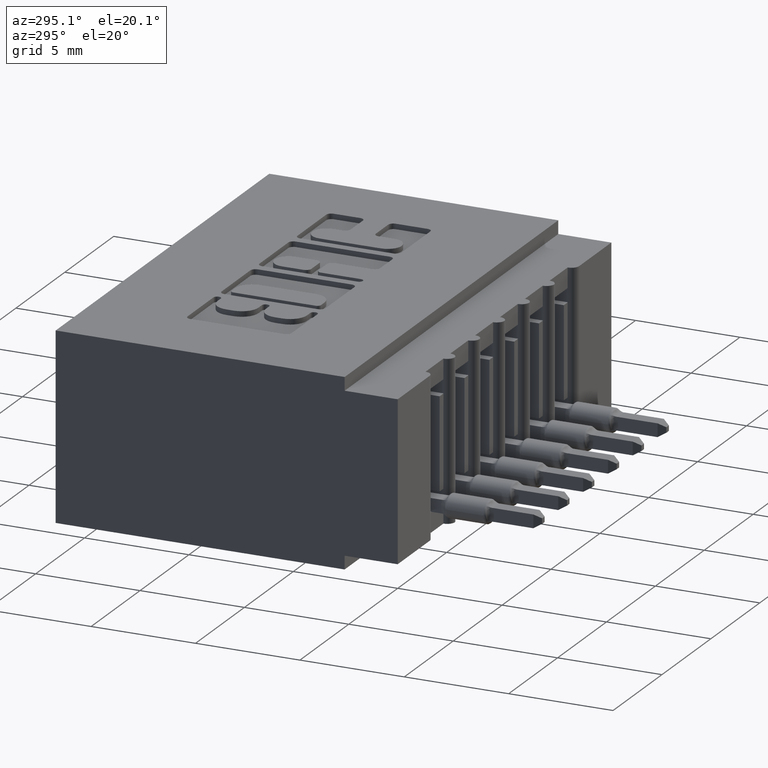
[diagram: clean part render]
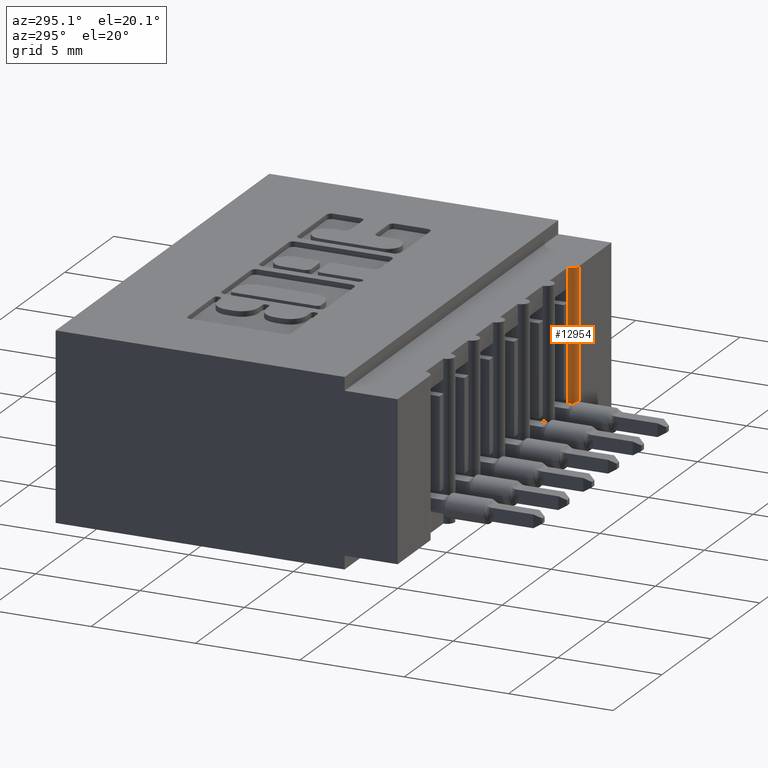
[diagram: same view with one face highlighted and labeled with its STEP entity id]
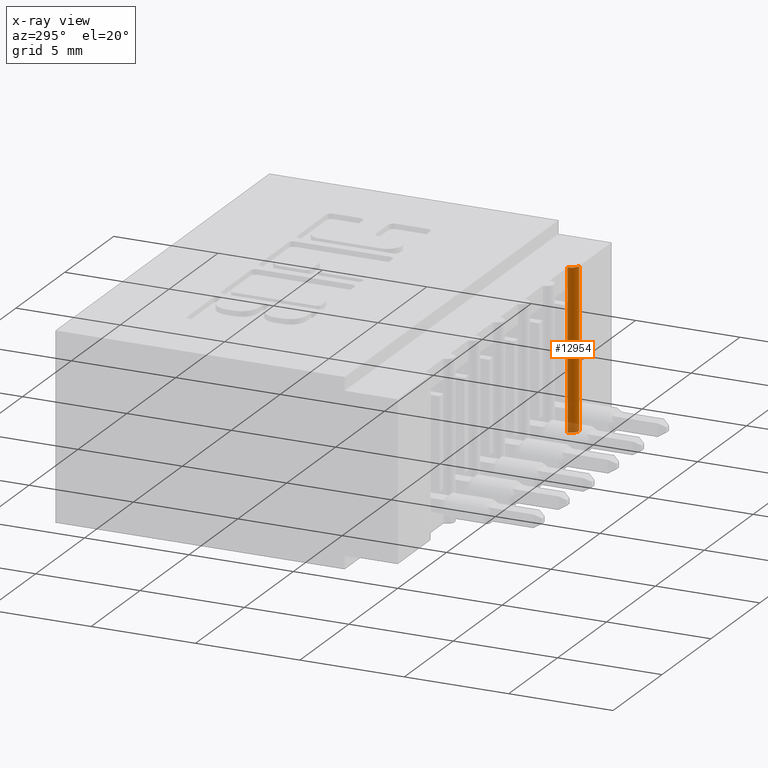
[diagram: x-ray of the same camera — body ghosted, the highlighted face saturated]
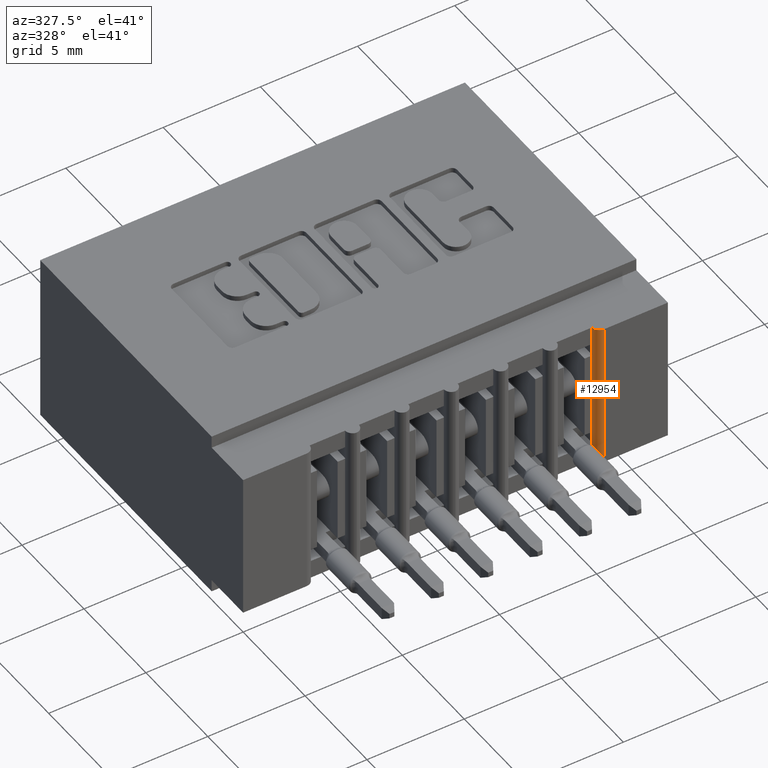
[diagram: same view with one face highlighted and labeled with its STEP entity id]
A machine part, auxiliary view. The second image highlights one B-rep face of the part: STEP entity #12954.
The next image is the same camera in x-ray: the body ghosted, the highlighted face saturated — about 6% of this face is hidden behind the body in this view.
A second angle (auxiliary view) of the same face is appended — the face is thin or edge-on in the first view.
In plain terms, the highlighted cylindrical surface (edge-blend (fillet) strip) has radius 0.381 mm, axis along (0, 0, 1).
Its self-contained STEP definition (entity closure, byte-faithful):
#44 = VERTEX_POINT ( 'NONE', #245 ) ;
#132 = AXIS2_PLACEMENT_3D ( 'NONE', #7803, #14422, #11336 ) ;
#239 = ORIENTED_EDGE ( 'NONE', *, *, #1859, .F. ) ;
#245 = CARTESIAN_POINT ( 'NONE',  ( 0.7159999999999996367, 0.01499999999999993179, -0.02500000000000000486 ) ) ;
#351 = CARTESIAN_POINT ( 'NONE',  ( 0.7159999999999996367, 0.01499999999999993179, -0.3249999999999999556 ) ) ;
#855 = VECTOR ( 'NONE', #5403, 39.37007874015748143 ) ;
#974 = ORIENTED_EDGE ( 'NONE', *, *, #6901, .F. ) ;
#1074 = ORIENTED_EDGE ( 'NONE', *, *, #9013, .T. ) ;
#1160 = DIRECTION ( 'NONE',  ( -0.0000000000000000000, -0.0000000000000000000, 1.000000000000000000 ) ) ;
#1370 = DIRECTION ( 'NONE',  ( -0.0000000000000000000, -0.0000000000000000000, 1.000000000000000000 ) ) ;
#1828 = DIRECTION ( 'NONE',  ( -0.0000000000000000000, -0.0000000000000000000, 1.000000000000000000 ) ) ;
#1859 = EDGE_CURVE ( 'NONE', #13733, #13664, #7823, .T. ) ;
#2693 = AXIS2_PLACEMENT_3D ( 'NONE', #5334, #5488, #6765 ) ;
#2832 = LINE ( 'NONE', #9508, #6638 ) ;
#2976 = EDGE_CURVE ( 'NONE', #12281, #8638, #2832, .T. ) ;
#3113 = CARTESIAN_POINT ( 'NONE',  ( 0.7309999999999996501, 0.0000000000000000000, -0.3499999999999999778 ) ) ;
#3554 = FACE_OUTER_BOUND ( 'NONE', #7981, .T. ) ;
#3584 = VECTOR ( 'NONE', #1160, 39.37007874015748143 ) ;
#3607 = DIRECTION ( 'NONE',  ( -0.0000000000000000000, -0.0000000000000000000, 1.000000000000000000 ) ) ;
#3983 = ORIENTED_EDGE ( 'NONE', *, *, #12231, .F. ) ;
#4366 = CARTESIAN_POINT ( 'NONE',  ( 0.7159999999999996367, 0.01499999999999993179, -0.3499999999999999778 ) ) ;
#5334 = CARTESIAN_POINT ( 'NONE',  ( 0.7309999999999996501, 0.01499999999999991618, -0.3249999999999999556 ) ) ;
#5402 = VECTOR ( 'NONE', #12258, 39.37007874015748143 ) ;
#5403 = DIRECTION ( 'NONE',  ( -0.0000000000000000000, -0.0000000000000000000, 1.000000000000000000 ) ) ;
#5488 = DIRECTION ( 'NONE',  ( -0.0000000000000000000, -0.0000000000000000000, -1.000000000000000000 ) ) ;
#6118 = CIRCLE ( 'NONE', #132, 0.01499999999999997689 ) ;
#6401 = LINE ( 'NONE', #3113, #6893 ) ;
#6638 = VECTOR ( 'NONE', #7262, 39.37007874015748143 ) ;
#6765 = DIRECTION ( 'NONE',  ( 1.000000000000000000, 0.0000000000000000000, 0.0000000000000000000 ) ) ;
#6844 = DIRECTION ( 'NONE',  ( 1.000000000000000000, 0.0000000000000000000, 0.0000000000000000000 ) ) ;
#6860 = LINE ( 'NONE', #11441, #3584 ) ;
#6893 = VECTOR ( 'NONE', #1828, 39.37007874015748143 ) ;
#6901 = EDGE_CURVE ( 'NONE', #11650, #11283, #8190, .T. ) ;
#7067 = CYLINDRICAL_SURFACE ( 'NONE', #10058, 0.01499999999999997689 ) ;
#7262 = DIRECTION ( 'NONE',  ( -0.0000000000000000000, -0.0000000000000000000, 1.000000000000000000 ) ) ;
#7358 = VERTEX_POINT ( 'NONE', #11167 ) ;
#7651 = VECTOR ( 'NONE', #3607, 39.37007874015748143 ) ;
#7803 = CARTESIAN_POINT ( 'NONE',  ( 0.7309999999999996501, 0.01499999999999991618, -0.02500000000000000486 ) ) ;
#7823 = LINE ( 'NONE', #10228, #5402 ) ;
#7981 = EDGE_LOOP ( 'NONE', ( #1074, #13279, #3983, #13161, #10879, #239, #14390, #974 ) ) ;
#8190 = CIRCLE ( 'NONE', #2693, 0.01499999999999997689 ) ;
#8638 = VERTEX_POINT ( 'NONE', #13778 ) ;
#9013 = EDGE_CURVE ( 'NONE', #11650, #7358, #6401, .T. ) ;
#9282 = CARTESIAN_POINT ( 'NONE',  ( 0.7159999999999996367, 0.01499999999999993179, -0.2875000000000000888 ) ) ;
#9301 = CARTESIAN_POINT ( 'NONE',  ( 0.7159999999999996367, 0.01499999999999993179, -0.3499999999999999778 ) ) ;
#9320 = CARTESIAN_POINT ( 'NONE',  ( 0.7309999999999996501, 0.01499999999999991618, -0.3499999999999999778 ) ) ;
#9508 = CARTESIAN_POINT ( 'NONE',  ( 0.7159999999999996367, 0.01499999999999993179, -0.3499999999999999778 ) ) ;
#9964 = CARTESIAN_POINT ( 'NONE',  ( 0.7159999999999996367, 0.01500000000000002720, -0.2615000000000001767 ) ) ;
#10058 = AXIS2_PLACEMENT_3D ( 'NONE', #9320, #1370, #6844 ) ;
#10228 = CARTESIAN_POINT ( 'NONE',  ( 0.7159999999999996367, 0.01499999999999993179, -0.3499999999999999778 ) ) ;
#10717 = CARTESIAN_POINT ( 'NONE',  ( 0.7159999999999996367, 0.01499999999999993179, -0.08850000000000002309 ) ) ;
#10879 = ORIENTED_EDGE ( 'NONE', *, *, #12570, .F. ) ;
#11167 = CARTESIAN_POINT ( 'NONE',  ( 0.7309999999999996501, 0.0000000000000000000, -0.02500000000000000486 ) ) ;
#11283 = VERTEX_POINT ( 'NONE', #351 ) ;
#11336 = DIRECTION ( 'NONE',  ( 1.000000000000000000, 0.0000000000000000000, 0.0000000000000000000 ) ) ;
#11441 = CARTESIAN_POINT ( 'NONE',  ( 0.7159999999999996367, 0.01499999999999993179, -0.3499999999999999778 ) ) ;
#11650 = VERTEX_POINT ( 'NONE', #14756 ) ;
#12163 = LINE ( 'NONE', #4366, #855 ) ;
#12231 = EDGE_CURVE ( 'NONE', #8638, #44, #13879, .T. ) ;
#12258 = DIRECTION ( 'NONE',  ( -0.0000000000000000000, -0.0000000000000000000, 1.000000000000000000 ) ) ;
#12281 = VERTEX_POINT ( 'NONE', #10717 ) ;
#12570 = EDGE_CURVE ( 'NONE', #13664, #12281, #6860, .T. ) ;
#12954 = ADVANCED_FACE ( 'NONE', ( #3554 ), #7067, .T. ) ;
#13161 = ORIENTED_EDGE ( 'NONE', *, *, #2976, .F. ) ;
#13279 = ORIENTED_EDGE ( 'NONE', *, *, #14412, .T. ) ;
#13664 = VERTEX_POINT ( 'NONE', #9964 ) ;
#13733 = VERTEX_POINT ( 'NONE', #9282 ) ;
#13778 = CARTESIAN_POINT ( 'NONE',  ( 0.7159999999999996367, 0.01499999999999998904, -0.06250000000000002776 ) ) ;
#13879 = LINE ( 'NONE', #9301, #7651 ) ;
#14355 = EDGE_CURVE ( 'NONE', #11283, #13733, #12163, .T. ) ;
#14390 = ORIENTED_EDGE ( 'NONE', *, *, #14355, .F. ) ;
#14412 = EDGE_CURVE ( 'NONE', #7358, #44, #6118, .T. ) ;
#14422 = DIRECTION ( 'NONE',  ( 0.0000000000000000000, -0.0000000000000000000, -1.000000000000000000 ) ) ;
#14756 = CARTESIAN_POINT ( 'NONE',  ( 0.7309999999999996501, 0.0000000000000000000, -0.3249999999999999556 ) ) ;